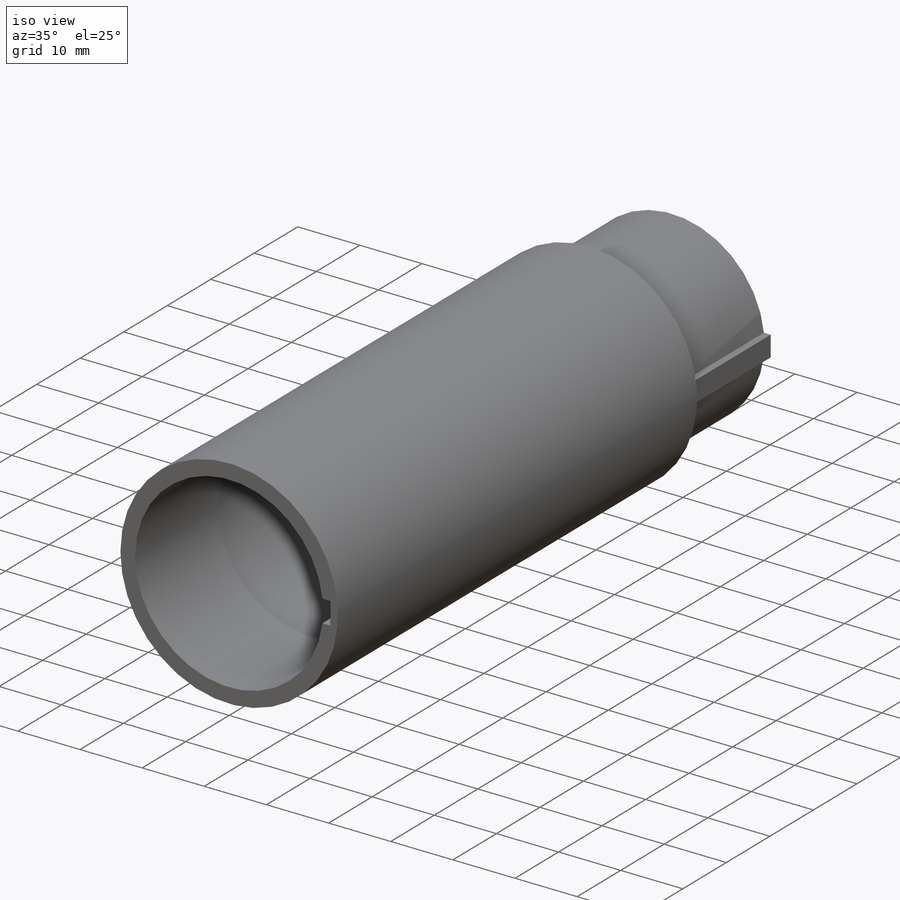
[diagram: iso view]
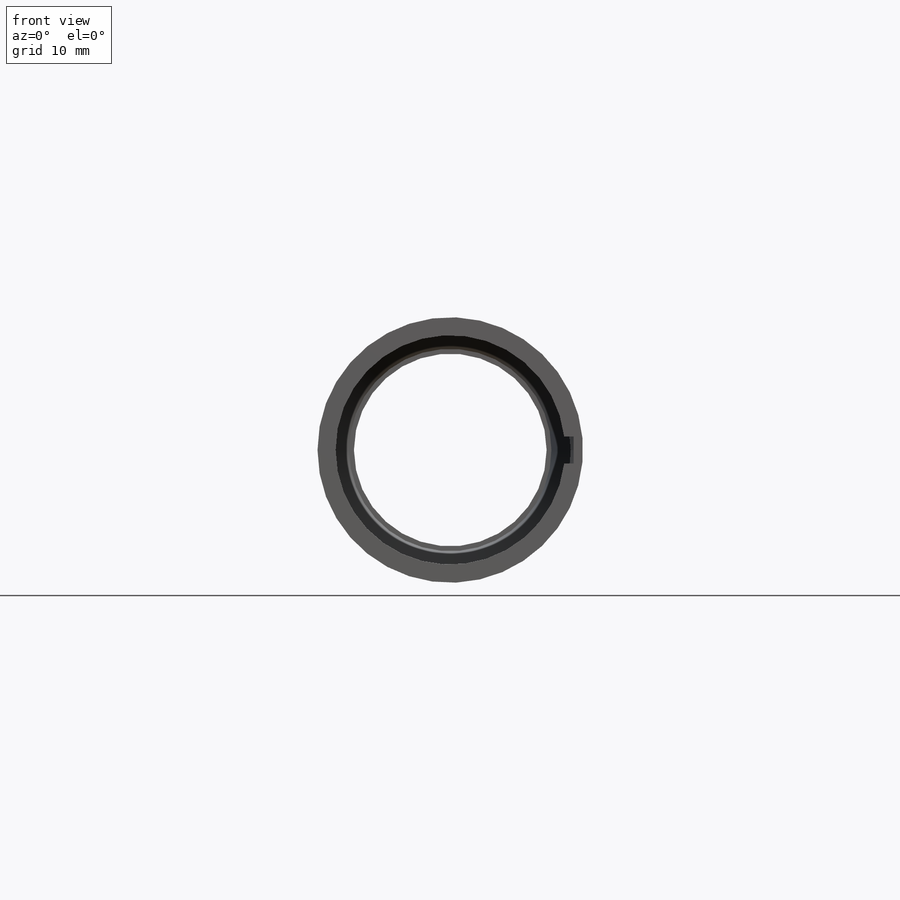
[diagram: front view]
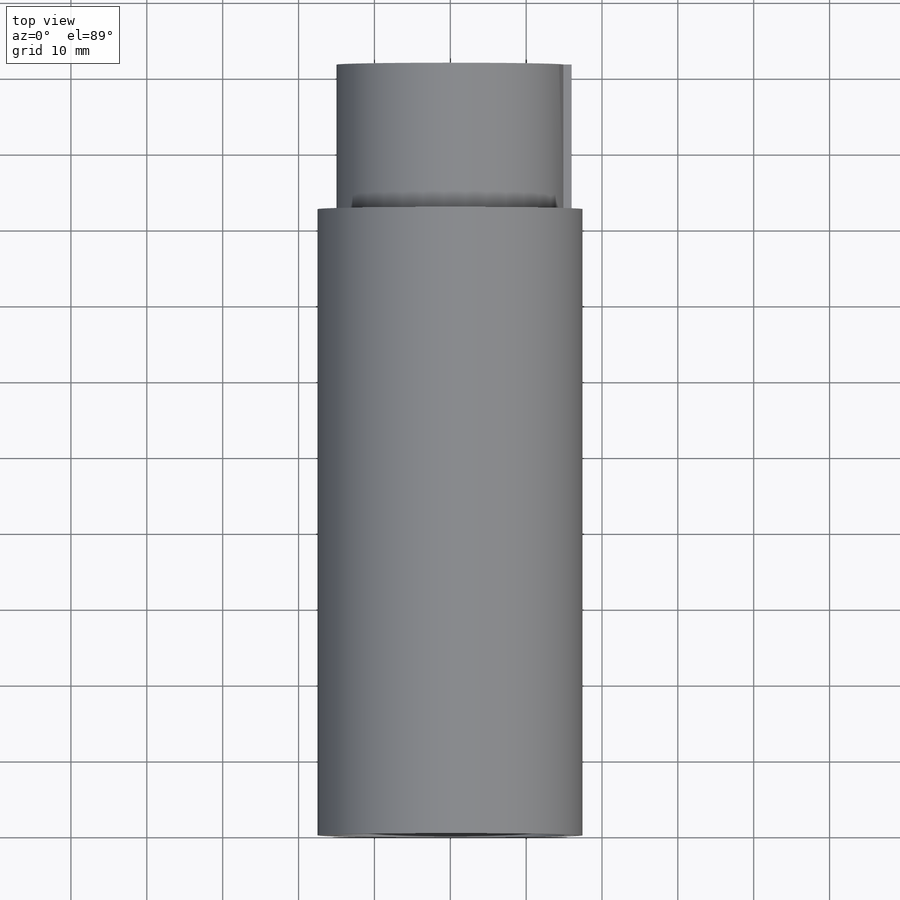
[diagram: top view]
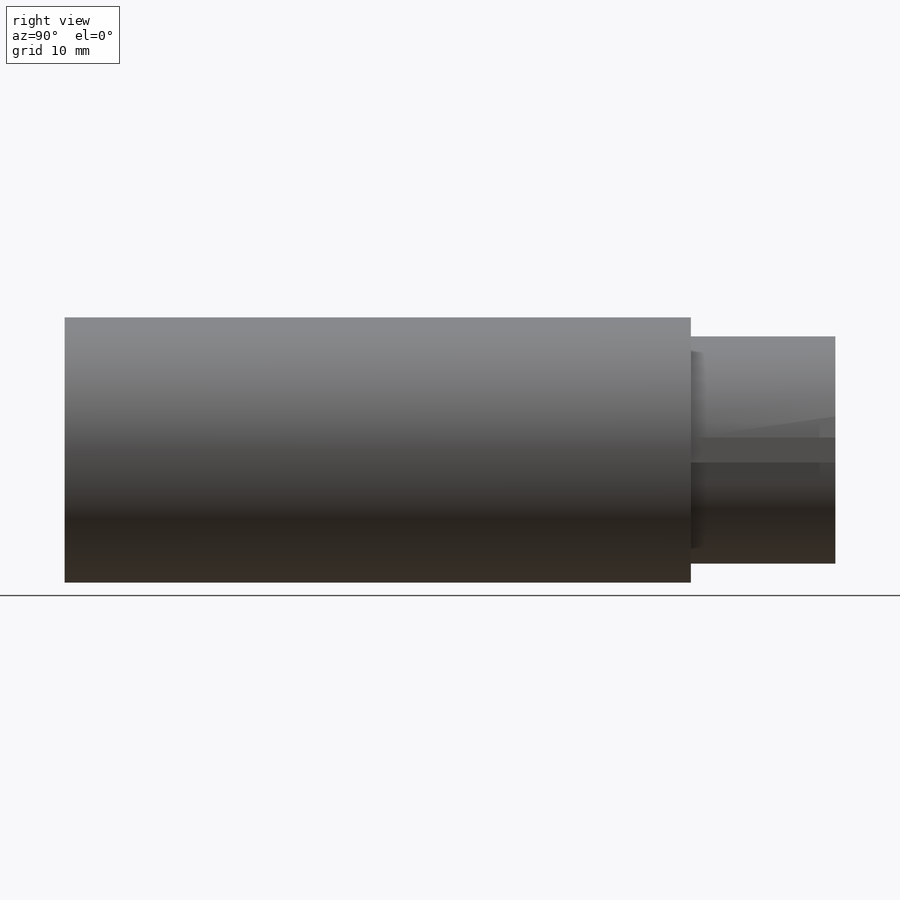
[diagram: right view]
SOLIDWORKS PART (.sldprt)
format: sldprt  version: not decoded by parser v0  size: 331,264 bytes
history: native  units: mm
features: sketch x15, cut_extrude x5, extrude x5, pattern_circular x4, chamfer x4, cut_revolve x2, material x1, revolve x1, sweep x1 (+11 scaffold rows collapsed)
feature tree (49):
  scaffold x11  (default folders/planes/origin — collapsed)
  material  "Material <not specified>"
  sketch  "Sketch1"  dims[c1.D1=101.6mm c1.D2=17.5mm c1.D3=15.0mm c1.D4=19.05mm c1.D5=6.604mm c2.D5=135.0deg]
  revolve  "Revolve1"  Angle=360deg
  sketch  "Sketch2"  dims[D1=25.4mm]
  cut_extrude  "Cut-Extrude1"  [1 undecoded]
  sketch  "Sketch3"  dims[c1.D1=~4.944588mm c2.D1=135.0deg c2.D2=78.74mm]
  extrude  "Boss-Extrude1"  Depth=1.27mm
  sketch  "Sketch4"
  sketch  "Sketch5"
  sweep  "Cut-Sweep1"
  pattern_circular  "CirPattern1"  Count=4 Angle=360deg
  sketch  "Sketch6"  dims[c1.D1=8.763mm c2.D1=60.0deg]
  cut_revolve  "Cut-Revolve1"  Angle=360deg
  sketch  "Sketch7"
  extrude  "Boss-Extrude2"  Depth=0.508mm
  pattern_circular  "CirPattern2"  Count=4 Angle=360deg
  chamfer  "Chamfer1"  Distance=2.54mm Angle=45deg
  sketch  "Sketch9"
  extrude  "Boss-Extrude3"  [1 undecoded]
  sketch  "Sketch10"  dims[D1=76.2mm D2=76.2mm]
  extrude  "Boss-Extrude4"  Depth=0.508mm
  sketch  "Sketch13"  dims[D1=30.226mm]
  cut_extrude  "Cut-Extrude4"  Depth=73.152mm
  chamfer  "Chamfer2"  Distance=25.4mm Angle=5.4deg
  sketch  "Sketch14"  dims[c1.D1=15.875mm c1.D2=15.875mm c2.D2=~175.308352deg c3.D2=25.4mm c3.D3=19.05mm]
  cut_revolve  "Cut-Revolve2"  Angle=360deg
  sketch  "Sketch15"  dims[D1=12.7mm D2=3.302mm D3=3.302mm]
  extrude  "Boss-Extrude5"  [1 undecoded]
  sketch  "Sketch16"  dims[D1=12.7mm D2=3.556mm]
  cut_extrude  "Cut-Extrude5"  Depth=19.812mm
  chamfer  "Chamfer3"  Distance=2.54mm Angle=70deg
  chamfer  "Chamfer4"  Distance=2.54mm Angle=45deg
  sketch  "Sketch11"  dims[D1=78.74mm D2=3.048mm]
  cut_extrude  "Cut-Extrude2"  Depth=1.6256mm
  pattern_circular  "CirPattern3"  Count=4 Angle=360deg
  sketch  "Sketch12"  dims[D1=6.604mm D2=1.4732mm]
  cut_extrude  "Cut-Extrude3"  [1 undecoded]
  pattern_circular  "CirPattern4"  Count=4 Angle=360deg
decode coverage: 28 of 37 modeling features carry decoded parameters
note: ~ marks probable driven/reference dimensions
note: 4 parameter values undecoded
summary: no parameter record found for 4 features
note: suppression state not decoded; provenance and decode notes live in map.json
